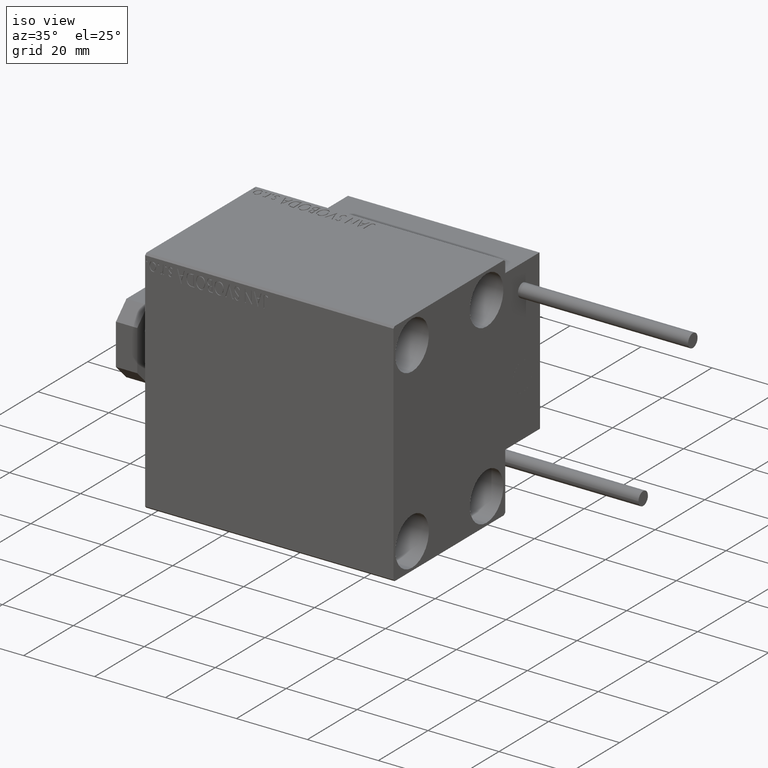
[diagram: clean part render]
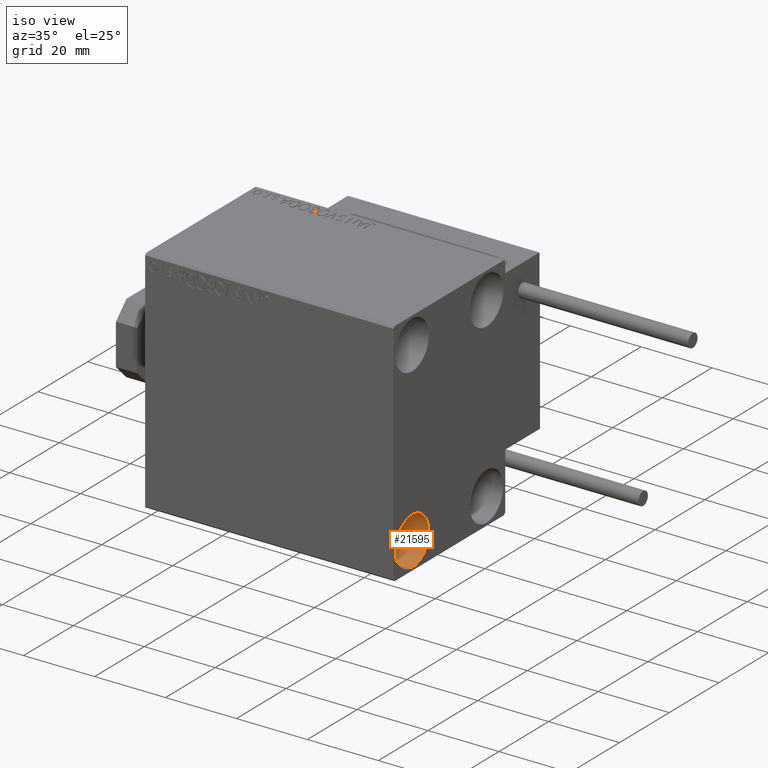
[diagram: same view with one face highlighted and labeled with its STEP entity id]
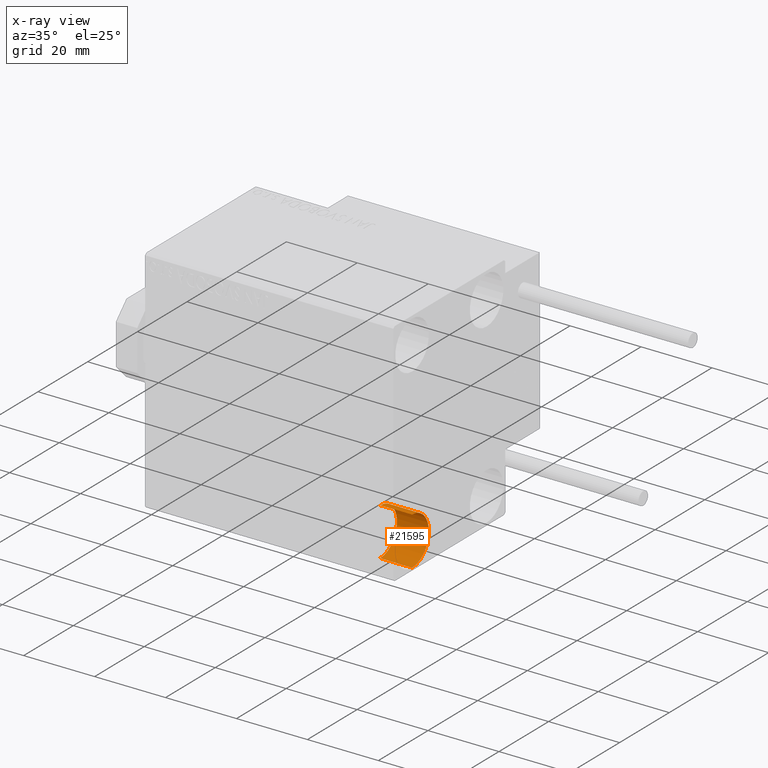
[diagram: x-ray of the same camera — body ghosted, the highlighted face saturated]
A machine part, iso view. The second image highlights one B-rep face of the part: STEP entity #21595.
The next image is the same camera in x-ray: the body ghosted, the highlighted face saturated — about 0% of this face is hidden behind the body in this view.
In plain terms, the highlighted cylindrical surface (edge-blend (fillet) strip) has radius 6.75 mm, axis along (1, 0, 0).
Its self-contained STEP definition (entity closure, byte-faithful):
#197 = LINE ( 'NONE', #15724, #49716 ) ;
#276 = ORIENTED_EDGE ( 'NONE', *, *, #37392, .T. ) ;
#448 = EDGE_CURVE ( 'NONE', #11457, #44008, #197, .T. ) ;
#2160 = CARTESIAN_POINT ( 'NONE',  ( 70.00000000000000000, -15.00000000000000355, -25.00000000000000000 ) ) ;
#2831 = EDGE_CURVE ( 'NONE', #44008, #45570, #14015, .T. ) ;
#3456 = AXIS2_PLACEMENT_3D ( 'NONE', #2160, #13612, #21983 ) ;
#5246 = DIRECTION ( 'NONE',  ( 0.000000000000000000, 0.000000000000000000, -1.000000000000000000 ) ) ;
#5336 = CIRCLE ( 'NONE', #41896, 6.749999999999999112 ) ;
#6444 = ORIENTED_EDGE ( 'NONE', *, *, #2831, .F. ) ;
#6698 = CARTESIAN_POINT ( 'NONE',  ( 61.00000000000000711, -15.00000000000000355, -31.75000000000000000 ) ) ;
#7741 = CARTESIAN_POINT ( 'NONE',  ( 70.00000000000000000, -15.00000000000000355, -18.25000000000000355 ) ) ;
#7935 = ORIENTED_EDGE ( 'NONE', *, *, #448, .F. ) ;
#10063 = DIRECTION ( 'NONE',  ( 0.000000000000000000, 0.000000000000000000, 1.000000000000000000 ) ) ;
#11457 = VERTEX_POINT ( 'NONE', #46583 ) ;
#13129 = CARTESIAN_POINT ( 'NONE',  ( 61.00000000000000711, -15.00000000000000355, -25.00000000000000000 ) ) ;
#13612 = DIRECTION ( 'NONE',  ( -1.000000000000000000, -0.000000000000000000, -0.000000000000000000 ) ) ;
#14015 = CIRCLE ( 'NONE', #3456, 6.749999999999999112 ) ;
#14773 = ORIENTED_EDGE ( 'NONE', *, *, #37602, .T. ) ;
#15724 = CARTESIAN_POINT ( 'NONE',  ( 61.00000000000000711, -15.00000000000000355, -18.25000000000000355 ) ) ;
#17067 = EDGE_LOOP ( 'NONE', ( #7935, #276, #14773, #6444 ) ) ;
#18487 = CARTESIAN_POINT ( 'NONE',  ( 70.00000000000000000, -15.00000000000000355, -31.75000000000000000 ) ) ;
#18903 = DIRECTION ( 'NONE',  ( 1.000000000000000000, -0.000000000000000000, -0.000000000000000000 ) ) ;
#21595 = ADVANCED_FACE ( 'NONE', ( #39847 ), #28169, .F. ) ;
#21983 = DIRECTION ( 'NONE',  ( 0.000000000000000000, 0.000000000000000000, 1.000000000000000000 ) ) ;
#25081 = CARTESIAN_POINT ( 'NONE',  ( 61.00000000000000711, -15.00000000000000355, -25.00000000000000000 ) ) ;
#25114 = AXIS2_PLACEMENT_3D ( 'NONE', #13129, #36026, #5246 ) ;
#28169 = CYLINDRICAL_SURFACE ( 'NONE', #25114, 6.749999999999999112 ) ;
#30362 = LINE ( 'NONE', #6698, #40252 ) ;
#35130 = VERTEX_POINT ( 'NONE', #50116 ) ;
#36026 = DIRECTION ( 'NONE',  ( 1.000000000000000000, -0.000000000000000000, -0.000000000000000000 ) ) ;
#37392 = EDGE_CURVE ( 'NONE', #11457, #35130, #5336, .T. ) ;
#37602 = EDGE_CURVE ( 'NONE', #35130, #45570, #30362, .T. ) ;
#39847 = FACE_OUTER_BOUND ( 'NONE', #17067, .T. ) ;
#40252 = VECTOR ( 'NONE', #18903, 1000.000000000000000 ) ;
#41896 = AXIS2_PLACEMENT_3D ( 'NONE', #25081, #44187, #10063 ) ;
#42952 = DIRECTION ( 'NONE',  ( 1.000000000000000000, -0.000000000000000000, -0.000000000000000000 ) ) ;
#44008 = VERTEX_POINT ( 'NONE', #7741 ) ;
#44187 = DIRECTION ( 'NONE',  ( -1.000000000000000000, -0.000000000000000000, -0.000000000000000000 ) ) ;
#45570 = VERTEX_POINT ( 'NONE', #18487 ) ;
#46583 = CARTESIAN_POINT ( 'NONE',  ( 61.00000000000000711, -15.00000000000000355, -18.25000000000000355 ) ) ;
#49716 = VECTOR ( 'NONE', #42952, 1000.000000000000000 ) ;
#50116 = CARTESIAN_POINT ( 'NONE',  ( 61.00000000000000711, -15.00000000000000355, -31.75000000000000000 ) ) ;